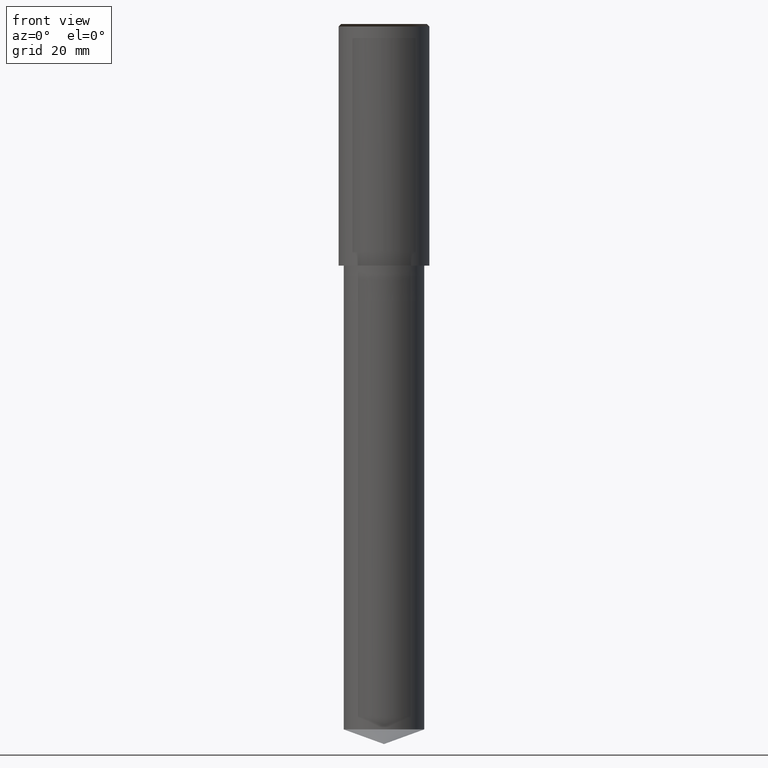
[diagram: clean part render]
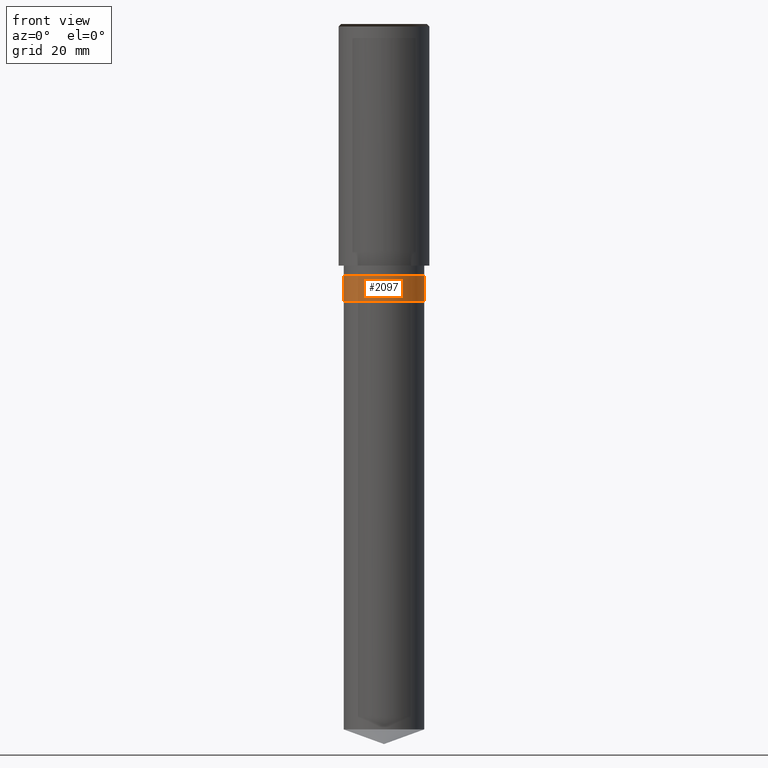
[diagram: same view with one face highlighted and labeled with its STEP entity id]
A machine part, front view. The second image highlights one B-rep face of the part: STEP entity #2097.
In plain terms, the highlighted face is a freeform B-spline surface patch.
Its self-contained STEP definition (entity closure, byte-faithful):
#1764=CARTESIAN_POINT('',(8.0,0.0,-7.0));
#1768=CARTESIAN_POINT('',(-8.0,0.0,-7.0));
#1773=CARTESIAN_POINT('',(-8.0,-8.0,-7.0));
#1774=CARTESIAN_POINT('',(0.0,-8.0,-7.0));
#1775=CARTESIAN_POINT('',(8.0,-8.0,-7.0));
#1776=CARTESIAN_POINT('',(8.0,0.0,-2.0));
#1780=CARTESIAN_POINT('',(-8.0,0.0,-2.0));
#1802=CARTESIAN_POINT('',(-8.0,-8.0,-2.0));
#1803=CARTESIAN_POINT('',(0.0,-8.0,-2.0));
#1804=CARTESIAN_POINT('',(8.0,-8.0,-2.0));
#2078=(
BOUNDED_SURFACE()
B_SPLINE_SURFACE(1,2,(
(#1768,#1773,#1774,#1775,#1764),
(#1780,#1802,#1803,#1804,#1776)
), .UNSPECIFIED.,.F.,.F.,.F.)
B_SPLINE_SURFACE_WITH_KNOTS((2,2),(3,2,3),(
0.0,1.0),(
0.0,0.5,1.0), .UNSPECIFIED.)
GEOMETRIC_REPRESENTATION_ITEM()
RATIONAL_B_SPLINE_SURFACE(((1.0,0.707106781187,1.0,0.707106781187,1.0),
(1.0,0.707106781187,1.0,0.707106781187,1.0)
))
REPRESENTATION_ITEM('')
SURFACE()
);
#2079=(
BOUNDED_CURVE()
B_SPLINE_CURVE(2,(#1764,#1775,#1774,#1773,#1768),.UNSPECIFIED.,.F.,.F.)
B_SPLINE_CURVE_WITH_KNOTS((3,2,3),
(0.0,0.5,1.0),.UNSPECIFIED.)
CURVE()
GEOMETRIC_REPRESENTATION_ITEM()
RATIONAL_B_SPLINE_CURVE((1.0,0.707106781187,1.0,0.707106781187,1.0))
REPRESENTATION_ITEM('')
);
#2080=(
BOUNDED_CURVE()
B_SPLINE_CURVE(1,(#1768,#1780),.UNSPECIFIED.,.F.,.F.)
B_SPLINE_CURVE_WITH_KNOTS((2,2),
(0.0,1.0),.UNSPECIFIED.)
CURVE()
GEOMETRIC_REPRESENTATION_ITEM()
RATIONAL_B_SPLINE_CURVE((1.0,1.0))
REPRESENTATION_ITEM('')
);
#2081=(
BOUNDED_CURVE()
B_SPLINE_CURVE(2,(#1780,#1802,#1803,#1804,#1776),.UNSPECIFIED.,.F.,.F.)
B_SPLINE_CURVE_WITH_KNOTS((3,2,3),
(0.0,0.5,1.0),.UNSPECIFIED.)
CURVE()
GEOMETRIC_REPRESENTATION_ITEM()
RATIONAL_B_SPLINE_CURVE((1.0,0.707106781187,1.0,0.707106781187,1.0))
REPRESENTATION_ITEM('')
);
#2082=(
BOUNDED_CURVE()
B_SPLINE_CURVE(1,(#1776,#1764),.UNSPECIFIED.,.F.,.F.)
B_SPLINE_CURVE_WITH_KNOTS((2,2),
(0.0,1.0),.UNSPECIFIED.)
CURVE()
GEOMETRIC_REPRESENTATION_ITEM()
RATIONAL_B_SPLINE_CURVE((1.0,1.0))
REPRESENTATION_ITEM('')
);
#2083=VERTEX_POINT('',#1764);
#2084=VERTEX_POINT('',#1768);
#2085=VERTEX_POINT('',#1776);
#2086=VERTEX_POINT('',#1780);
#2087=EDGE_CURVE('',#2083,#2084,#2079,.T.);
#2088=EDGE_CURVE('',#2084,#2086,#2080,.T.);
#2089=EDGE_CURVE('',#2086,#2085,#2081,.T.);
#2090=EDGE_CURVE('',#2085,#2083,#2082,.T.);
#2091=ORIENTED_EDGE('',*,*,#2087,.T.);
#2092=ORIENTED_EDGE('',*,*,#2088,.T.);
#2093=ORIENTED_EDGE('',*,*,#2089,.T.);
#2094=ORIENTED_EDGE('',*,*,#2090,.T.);
#2095=EDGE_LOOP('',(#2091,#2092,#2093,#2094));
#2096=FACE_OUTER_BOUND('',#2095,.T.);
#2097=ADVANCED_FACE('',(#2096),#2078,.T.);